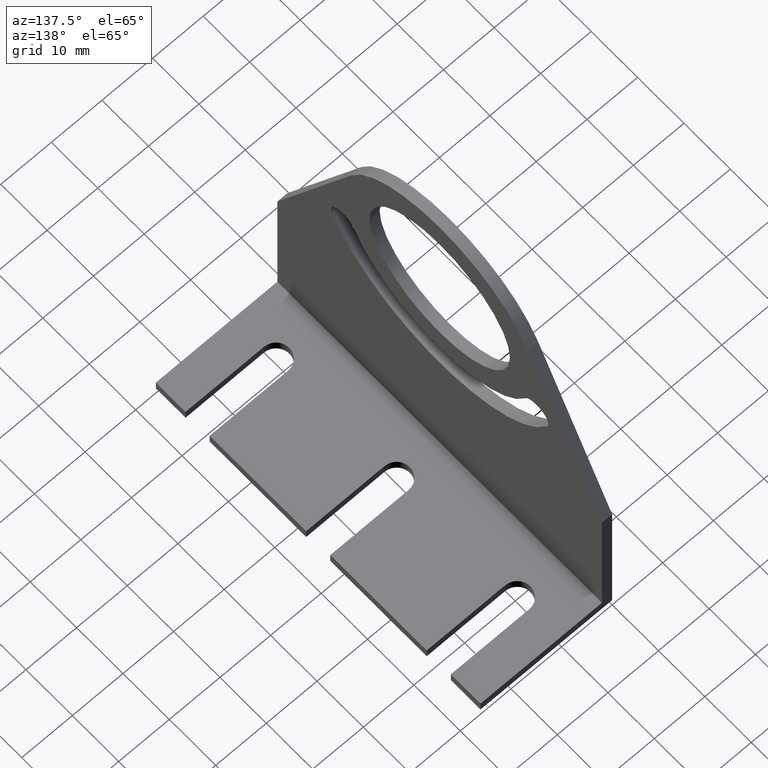
[diagram: clean part render]
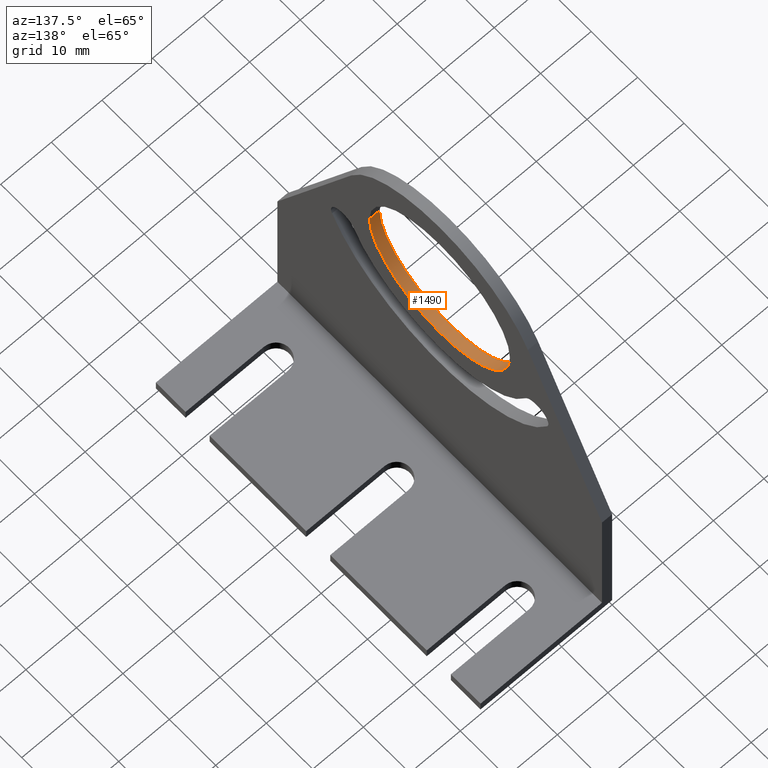
[diagram: same view with one face highlighted and labeled with its STEP entity id]
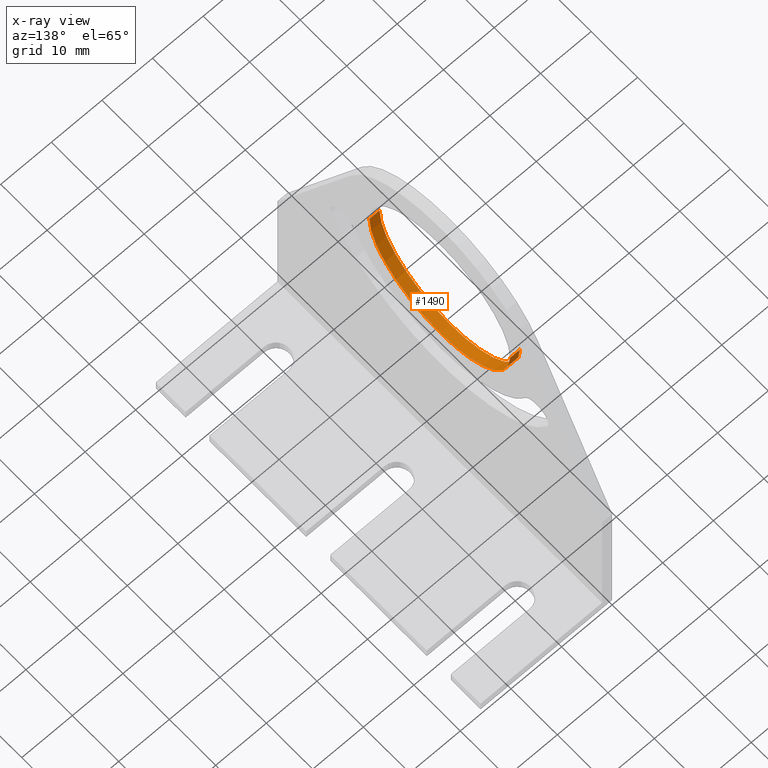
[diagram: x-ray of the same camera — body ghosted, the highlighted face saturated]
A machine part, auxiliary view. The second image highlights one B-rep face of the part: STEP entity #1490.
The next image is the same camera in x-ray: the body ghosted, the highlighted face saturated — about 0% of this face is hidden behind the body in this view.
In plain terms, the highlighted cylindrical surface (partial cylindrical patch) has radius 15.15 mm, axis along (-1, 0, 0).
Its self-contained STEP definition (entity closure, byte-faithful):
#60=CARTESIAN_POINT('',(0.,0.,2.));
#70=DIRECTION('',(0.,0.,-1.));
#80=DIRECTION('',(-1.,-1.22839718603489E-16,0.));
#90=AXIS2_PLACEMENT_3D('',#60,#70,#80);
#100=CIRCLE('',#90,15.15);
#110=CARTESIAN_POINT('',(15.15,1.85533990070824E-15,2.));
#120=VERTEX_POINT('',#110);
#130=CARTESIAN_POINT('',(-15.15,0.,2.));
#140=VERTEX_POINT('',#130);
#150=EDGE_CURVE('',#120,#140,#100,.T.);
#1180=CARTESIAN_POINT('',(0.,0.,1.));
#1190=DIRECTION('',(0.,0.,-1.));
#1200=DIRECTION('',(-1.,0.,0.));
#1210=AXIS2_PLACEMENT_3D('',#1180,#1190,#1200);
#1220=CYLINDRICAL_SURFACE('',#1210,15.15);
#1230=CARTESIAN_POINT('',(15.15,1.85533990070824E-15,1.));
#1240=DIRECTION('',(0.,0.,-1.));
#1250=VECTOR('',#1240,1.);
#1260=LINE('',#1230,#1250);
#1270=CARTESIAN_POINT('',(15.15,1.85533990070824E-15,0.));
#1280=VERTEX_POINT('',#1270);
#1290=EDGE_CURVE('',#120,#1280,#1260,.T.);
#1300=ORIENTED_EDGE('',*,*,#1290,.T.);
#1310=ORIENTED_EDGE('',*,*,#150,.F.);
#1320=CARTESIAN_POINT('',(-15.15,0.,1.));
#1330=DIRECTION('',(0.,0.,-1.));
#1340=VECTOR('',#1330,1.);
#1350=LINE('',#1320,#1340);
#1360=CARTESIAN_POINT('',(-15.15,0.,0.));
#1370=VERTEX_POINT('',#1360);
#1380=EDGE_CURVE('',#140,#1370,#1350,.T.);
#1390=ORIENTED_EDGE('',*,*,#1380,.F.);
#1400=CARTESIAN_POINT('',(0.,0.,0.));
#1410=DIRECTION('',(0.,0.,1.));
#1420=DIRECTION('',(1.,1.22464679914735E-16,0.));
#1430=AXIS2_PLACEMENT_3D('',#1400,#1410,#1420);
#1440=CIRCLE('',#1430,15.15);
#1450=EDGE_CURVE('',#1370,#1280,#1440,.T.);
#1460=ORIENTED_EDGE('',*,*,#1450,.F.);
#1470=EDGE_LOOP('',(#1460,#1390,#1310,#1300));
#1480=FACE_OUTER_BOUND('',#1470,.T.);
#1490=ADVANCED_FACE('',(#1480),#1220,.F.);